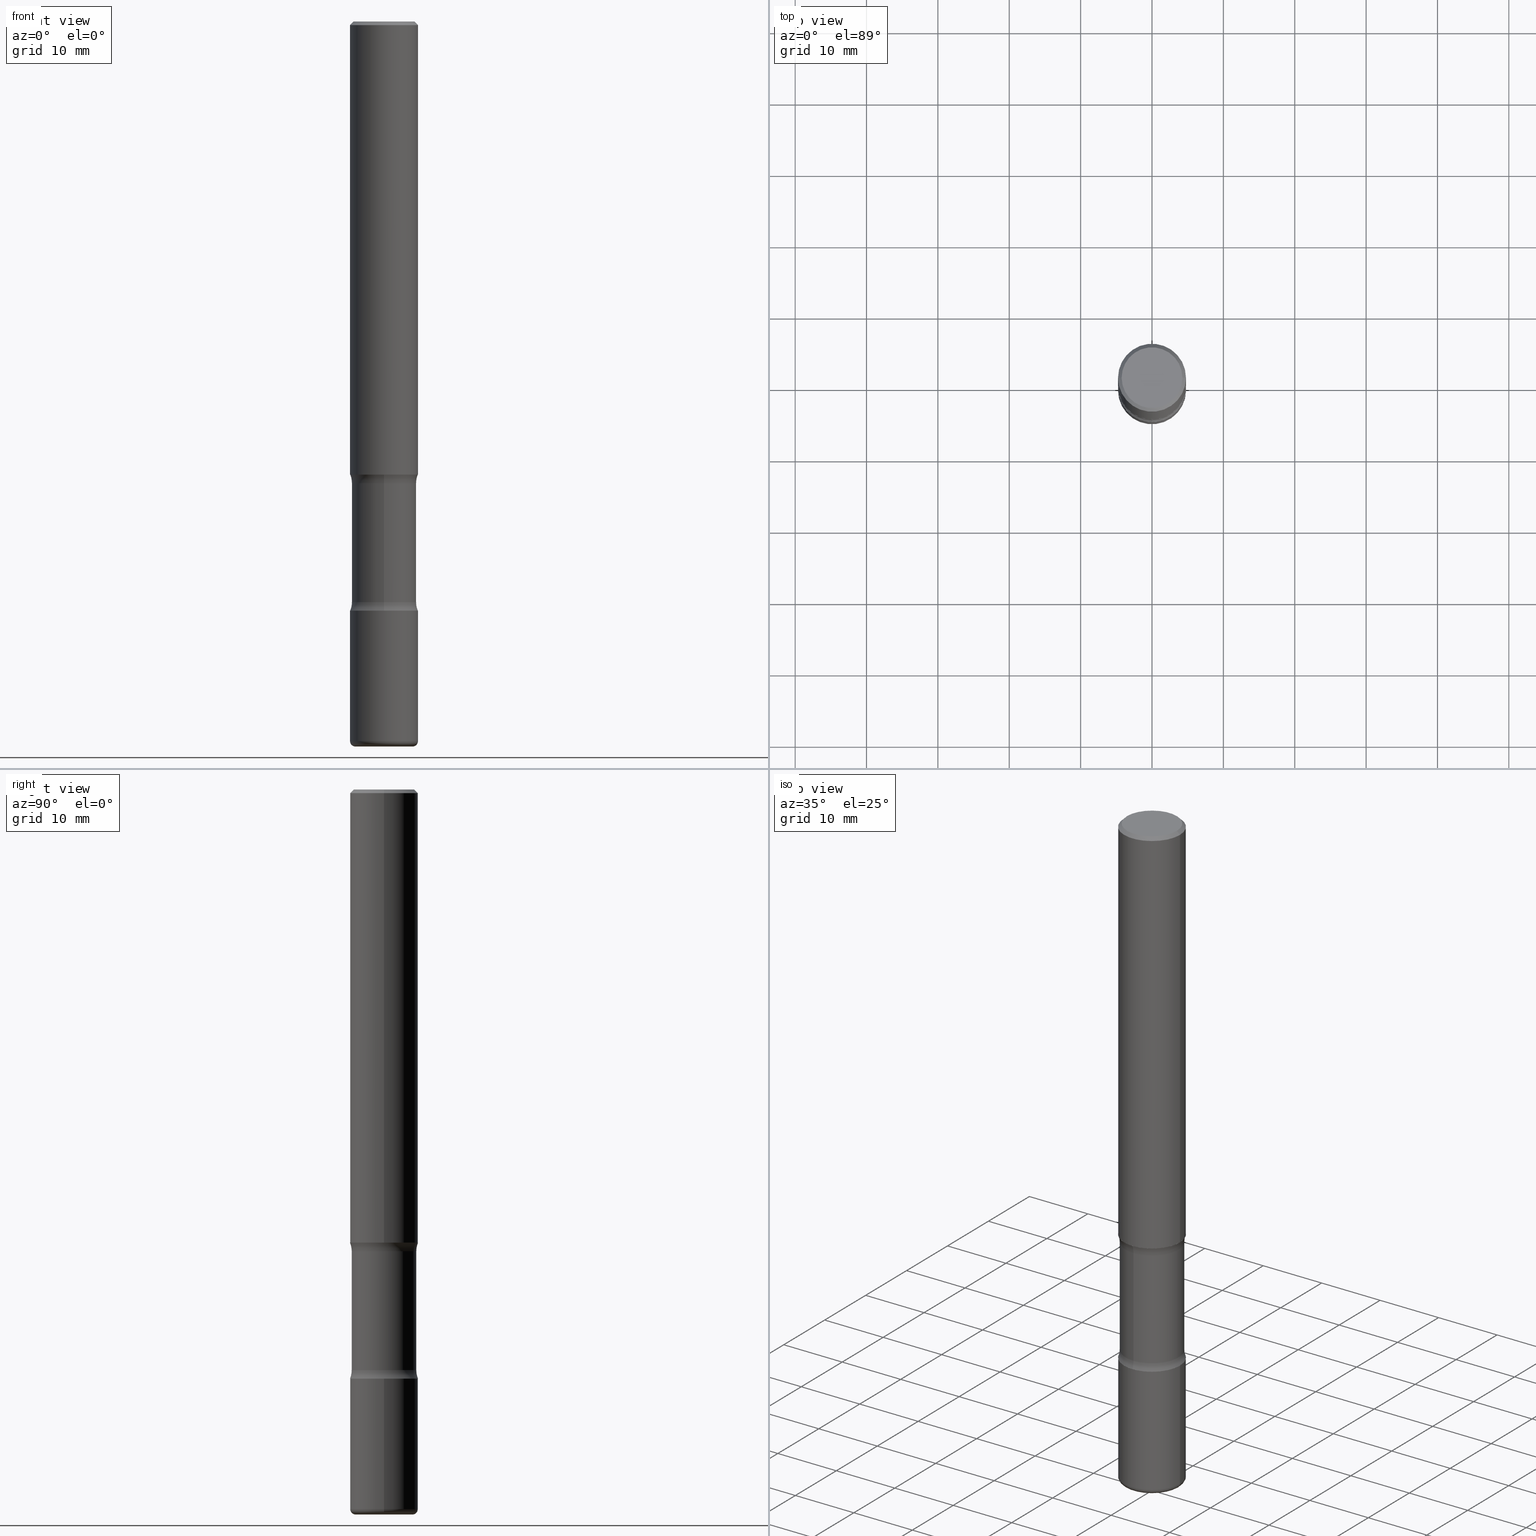
[diagram: canonical four-view strip — front | top / right | iso, engineering-drawing reading convention]
A machine part, canonical four-view strip (front | top / right | iso — engineering-drawing reading convention). The complete STEP part file that produces these views, byte-faithful:
ISO-10303-21;
HEADER;
FILE_DESCRIPTION (( 'STEP AP203' ),
    '1' );
FILE_NAME ('37843.STEP',
    '2024-03-02T00:43:08',
    ( '' ),
    ( '' ),
    'SwSTEP 2.0',
    'SolidWorks 2023',
    '' );
FILE_SCHEMA (( 'CONFIG_CONTROL_DESIGN' ));
ENDSEC;

DATA;
#1 = EDGE_LOOP ( 'NONE', ( #300, #359, #533, #163 ) ) ;
#2 = EDGE_CURVE ( 'NONE', #96, #8, #497, .T. ) ;
#3 = CARTESIAN_POINT ( 'NONE',  ( 0.000000000000000000, 0.000000000000000000, 0.000000000000000000 ) ) ;
#4 = DIRECTION ( 'NONE',  ( 2.558681667686983511E-29, -3.329354077496592524E-15, -1.000000000000000000 ) ) ;
#5 = APPROVAL_ROLE ( '' ) ;
#6 = ORIENTED_EDGE ( 'NONE', *, *, #419, .T. ) ;
#7 = TOROIDAL_SURFACE ( 'NONE', #30, 0.1575000000000001676, 0.02999999999999967970 ) ;
#8 = VERTEX_POINT ( 'NONE', #188 ) ;
#9 = AXIS2_PLACEMENT_3D ( 'NONE', #295, #246, #214 ) ;
#10 = SECURITY_CLASSIFICATION ( '', '', #231 ) ;
#11 = DATE_AND_TIME ( #263, #321 ) ;
#12 = VERTEX_POINT ( 'NONE', #361 ) ;
#13 = APPROVAL_STATUS ( 'not_yet_approved' ) ;
#14 = VERTEX_POINT ( 'NONE', #183 ) ;
#15 = ADVANCED_FACE ( 'NONE', ( #103 ), #314, .T. ) ;
#16 = EDGE_CURVE ( 'NONE', #12, #443, #362, .T. ) ;
#17 = LOCAL_TIME ( 19, 43, 8.000000000000000000, #522 ) ;
#18 = ORIENTED_EDGE ( 'NONE', *, *, #418, .T. ) ;
#19 = VECTOR ( 'NONE', #145, 39.37007874015748143 ) ;
#20 = DIRECTION ( 'NONE',  ( 1.000000000000000000, -6.982962677686269077E-15, 4.883557194083112901E-29 ) ) ;
#21 = ORIENTED_EDGE ( 'NONE', *, *, #490, .F. ) ;
#22 = UNCERTAINTY_MEASURE_WITH_UNIT (LENGTH_MEASURE( 1.000000000000000082E-05 ), #465, 'distance_accuracy_value', 'NONE');
#23 = AXIS2_PLACEMENT_3D ( 'NONE', #97, #52, #230 ) ;
#24 = DIRECTION ( 'NONE',  ( -1.000000000000000000, 6.982962677686265922E-15, -4.876176775795935793E-29 ) ) ;
#25 = CIRCLE ( 'NONE', #71, 0.1575000000000001676 ) ;
#26 = ADVANCED_FACE ( 'NONE', ( #530 ), #445, .T. ) ;
#27 = FACE_OUTER_BOUND ( 'NONE', #130, .T. ) ;
#28 = PLANE ( 'NONE',  #324 ) ;
#29 = CYLINDRICAL_SURFACE ( 'NONE', #536, 0.1875000000000000278 ) ;
#30 = AXIS2_PLACEMENT_3D ( 'NONE', #461, #72, #416 ) ;
#31 = CIRCLE ( 'NONE', #9, 0.1875000000000000833 ) ;
#32 = EDGE_LOOP ( 'NONE', ( #161, #354, #225, #428 ) ) ;
#33 = DIRECTION ( 'NONE',  ( -2.558681667686982950E-29, 3.329354077496592524E-15, 1.000000000000000000 ) ) ;
#34 = CARTESIAN_POINT ( 'NONE',  ( 1.169646248512448806E-15, 0.1674999999999998990, -5.848231242562264739E-16 ) ) ;
#35 = ORIENTED_EDGE ( 'NONE', *, *, #462, .T. ) ;
#36 = CARTESIAN_POINT ( 'NONE',  ( 6.150289227201164007E-29, -9.008429421428009851E-15, -2.547495887979908780 ) ) ;
#37 = EDGE_LOOP ( 'NONE', ( #76, #35, #144, #479 ) ) ;
#38 = DIRECTION ( 'NONE',  ( -2.445468806185136877E-29, 3.491481338843145188E-15, 1.000000000000000000 ) ) ;
#39 = SHAPE_DEFINITION_REPRESENTATION ( #242, #68 ) ;
#40 = ORIENTED_EDGE ( 'NONE', *, *, #112, .F. ) ;
#41 = FACE_OUTER_BOUND ( 'NONE', #250, .T. ) ;
#42 = EDGE_CURVE ( 'NONE', #389, #395, #253, .T. ) ;
#43 = AXIS2_PLACEMENT_3D ( 'NONE', #53, #139, #223 ) ;
#44 = CARTESIAN_POINT ( 'NONE',  ( 0.1875000000000001110, -1.003800884917403995E-14, -2.500000000000000000 ) ) ;
#45 = DATE_AND_TIME ( #127, #106 ) ;
#46 = FACE_OUTER_BOUND ( 'NONE', #483, .T. ) ;
#47 = CARTESIAN_POINT ( 'NONE',  ( 6.028762369336457147E-29, -8.850298793117778356E-15, -2.500000000000000000 ) ) ;
#48 = ORIENTED_EDGE ( 'NONE', *, *, #42, .T. ) ;
#49 = CYLINDRICAL_SURFACE ( 'NONE', #273, 0.1875000000000001110 ) ;
#50 = FACE_OUTER_BOUND ( 'NONE', #226, .T. ) ;
#51 = PERSON_AND_ORGANIZATION ( #366, #303 ) ;
#52 = DIRECTION ( 'NONE',  ( -1.000000000000000000, 6.982962677686265922E-15, -4.883557194083112901E-29 ) ) ;
#53 = CARTESIAN_POINT ( 'NONE',  ( 7.831623907624765469E-29, -1.118148334468659010E-14, -3.202504112020091664 ) ) ;
#54 = AXIS2_PLACEMENT_3D ( 'NONE', #393, #311, #516 ) ;
#55 = ADVANCED_FACE ( 'NONE', ( #46 ), #287, .T. ) ;
#56 = PERSON_AND_ORGANIZATION ( #366, #303 ) ;
#57 = ADVANCED_FACE ( 'NONE', ( #179 ), #49, .T. ) ;
#58 = VERTEX_POINT ( 'NONE', #398 ) ;
#59 = CARTESIAN_POINT ( 'NONE',  ( 4.890937612370289799E-31, -6.982962677686315028E-17, -0.02000000000000006981 ) ) ;
#60 = AXIS2_PLACEMENT_3D ( 'NONE', #455, #254, #66 ) ;
#61 = AXIS2_PLACEMENT_3D ( 'NONE', #498, #454, #290 ) ;
#62 = CARTESIAN_POINT ( 'NONE',  ( 7.831623907624765469E-29, -1.118148334468659010E-14, -3.202504112020091664 ) ) ;
#63 = ORIENTED_EDGE ( 'NONE', *, *, #384, .T. ) ;
#64 = CARTESIAN_POINT ( 'NONE',  ( 0.1874999999999999167, -1.356173001359024677E-15, -0.02000000000000006981 ) ) ;
#65 = EDGE_CURVE ( 'NONE', #134, #252, #218, .T. ) ;
#66 = DIRECTION ( 'NONE',  ( 1.000000000000000000, -6.982962677686265922E-15, 4.876176775795935793E-29 ) ) ;
#67 = CC_DESIGN_APPROVAL ( #329, ( #141 ) ) ;
#68 = ADVANCED_BREP_SHAPE_REPRESENTATION ( '37843', ( #241, #420, #415, #514 ), #542 ) ;
#69 = FACE_OUTER_BOUND ( 'NONE', #476, .T. ) ;
#70 = DIRECTION ( 'NONE',  ( 1.000000000000000000, -6.982962677686277755E-15, 0.000000000000000000 ) ) ;
#71 = AXIS2_PLACEMENT_3D ( 'NONE', #325, #364, #191 ) ;
#72 = DIRECTION ( 'NONE',  ( -2.445468806185136597E-29, 3.491481338843145583E-15, 1.000000000000000000 ) ) ;
#73 = CARTESIAN_POINT ( 'NONE',  ( 7.826246762236988201E-29, -1.118918372292999451E-14, -3.202504112020091664 ) ) ;
#74 = CARTESIAN_POINT ( 'NONE',  ( 1.243840226962927197E-15, 0.1781249999999909572, -2.547495887979909224 ) ) ;
#75 = CARTESIAN_POINT ( 'NONE',  ( 0.000000000000000000, 0.000000000000000000, 0.000000000000000000 ) ) ;
#76 = ORIENTED_EDGE ( 'NONE', *, *, #377, .T. ) ;
#77 = PLANE ( 'NONE',  #60 ) ;
#78 = DIRECTION ( 'NONE',  ( 2.438088387897960049E-29, -3.491481338843145188E-15, -1.000000000000000000 ) ) ;
#79 = VECTOR ( 'NONE', #335, 39.37007874015748143 ) ;
#80 = EDGE_LOOP ( 'NONE', ( #219, #386, #439, #510 ) ) ;
#81 = DIRECTION ( 'NONE',  ( 1.000000000000000000, -6.982962677686269077E-15, 0.000000000000000000 ) ) ;
#82 = EDGE_LOOP ( 'NONE', ( #317, #310 ) ) ;
#83 = CARTESIAN_POINT ( 'NONE',  ( 7.826246762236988201E-29, -1.118918372292999451E-14, -3.202504112020091664 ) ) ;
#84 = APPROVAL_DATE_TIME ( #11, #329 ) ;
#85 = ORIENTED_EDGE ( 'NONE', *, *, #16, .T. ) ;
#86 = APPLICATION_CONTEXT ( 'configuration controlled 3d designs of mechanical parts and assemblies' ) ;
#87 = CALENDAR_DATE ( 2024, 1, 3 ) ;
#88 = ORIENTED_EDGE ( 'NONE', *, *, #408, .T. ) ;
#89 = AXIS2_PLACEMENT_3D ( 'NONE', #59, #235, #376 ) ;
#90 = DIRECTION ( 'NONE',  ( 2.558681667686983511E-29, -3.329354077496592524E-15, -1.000000000000000000 ) ) ;
#91 = EDGE_LOOP ( 'NONE', ( #450, #197 ) ) ;
#92 = DIRECTION ( 'NONE',  ( -2.445468806185136597E-29, 3.491481338843145583E-15, 1.000000000000000000 ) ) ;
#93 = PRODUCT_RELATED_PRODUCT_CATEGORY ( 'detail', '', ( #323 ) ) ;
#94 = FACE_OUTER_BOUND ( 'NONE', #37, .T. ) ;
#95 = DATE_AND_TIME ( #87, #286 ) ;
#96 = VERTEX_POINT ( 'NONE', #401 ) ;
#97 = CARTESIAN_POINT ( 'NONE',  ( 2.116710561673711128E-15, 0.3031249999999910405, -2.547495887979910112 ) ) ;
#98 = ADVANCED_FACE ( 'NONE', ( #187 ), #352, .T. ) ;
#99 = PERSON_AND_ORGANIZATION ( #366, #303 ) ;
#100 = VERTEX_POINT ( 'NONE', #251 ) ;
#101 = APPLICATION_CONTEXT ( 'configuration controlled 3d designs of mechanical parts and assemblies' ) ;
#102 = CIRCLE ( 'NONE', #228, 0.1874999999999999167 ) ;
#103 = FACE_OUTER_BOUND ( 'NONE', #80, .T. ) ;
#104 = ADVANCED_FACE ( 'NONE', ( #27 ), #457, .F. ) ;
#105 = EDGE_CURVE ( 'NONE', #100, #558, #102, .T. ) ;
#106 = LOCAL_TIME ( 19, 43, 8.000000000000000000, #185 ) ;
#107 = CIRCLE ( 'NONE', #184, 0.1250000000000000278 ) ;
#108 = CARTESIAN_POINT ( 'NONE',  ( 9.708511160554993993E-29, -1.386118091520729054E-14, -3.970000000000000639 ) ) ;
#109 = DIRECTION ( 'NONE',  ( -2.445468806185136597E-29, 3.491481338843145583E-15, 1.000000000000000000 ) ) ;
#110 = CYLINDRICAL_SURFACE ( 'NONE', #468, 0.1781249999999999500 ) ;
#111 = CARTESIAN_POINT ( 'NONE',  ( 0.1875000000000001110, -1.309305502066175797E-15, 9.142831454617385217E-30 ) ) ;
#112 = EDGE_CURVE ( 'NONE', #431, #14, #170, .T. ) ;
#113 = ADVANCED_FACE ( 'NONE', ( #69 ), #332, .F. ) ;
#114 = CARTESIAN_POINT ( 'NONE',  ( 7.947773620101696182E-29, -1.134731435124022600E-14, -3.250000000000000444 ) ) ;
#115 = CARTESIAN_POINT ( 'NONE',  ( 9.781875224740546387E-29, -1.396592535537258233E-14, -4.000000000000000000 ) ) ;
#116 = AXIS2_PLACEMENT_3D ( 'NONE', #137, #356, #527 ) ;
#117 = DIRECTION ( 'NONE',  ( 2.558681667686983511E-29, -3.329354077496592524E-15, -1.000000000000000000 ) ) ;
#118 = CIRCLE ( 'NONE', #61, 0.1781249999999999500 ) ;
#119 = CARTESIAN_POINT ( 'NONE',  ( 4.890937612370289799E-31, -6.982962677686315028E-17, -0.02000000000000006981 ) ) ;
#120 = DIRECTION ( 'NONE',  ( -1.000000000000000000, 6.982962677686265922E-15, 0.000000000000000000 ) ) ;
#121 = ORIENTED_EDGE ( 'NONE', *, *, #408, .F. ) ;
#122 = DIMENSIONAL_EXPONENTS ( 1.000000000000000000, 0.000000000000000000, 0.000000000000000000, 0.000000000000000000, 0.000000000000000000, 0.000000000000000000, 0.000000000000000000 ) ;
#123 = AXIS2_PLACEMENT_3D ( 'NONE', #115, #255, #417 ) ;
#124 = CARTESIAN_POINT ( 'NONE',  ( -1.222026205852954821E-15, -0.1781250000000138001, -3.999999999999999556 ) ) ;
#125 = ADVANCED_FACE ( 'NONE', ( #424 ), #156, .F. ) ;
#126 = CARTESIAN_POINT ( 'NONE',  ( 0.000000000000000000, 0.000000000000000000, 0.000000000000000000 ) ) ;
#127 = CALENDAR_DATE ( 2024, 1, 3 ) ;
#128 = DIRECTION ( 'NONE',  ( 6.982962677686266711E-15, 1.000000000000000000, -3.067338098149349089E-15 ) ) ;
#129 = FACE_OUTER_BOUND ( 'NONE', #237, .T. ) ;
#130 = EDGE_LOOP ( 'NONE', ( #48, #549 ) ) ;
#131 = CARTESIAN_POINT ( 'NONE',  ( 1.309305502066236145E-15, 0.1874999999999913125, -2.500000000000000444 ) ) ;
#132 = CLOSED_SHELL ( 'NONE', ( #264, #26, #98, #473, #147, #539 ) ) ;
#133 = DATE_TIME_ROLE ( 'classification_date' ) ;
#134 = VERTEX_POINT ( 'NONE', #74 ) ;
#135 = AXIS2_PLACEMENT_3D ( 'NONE', #272, #4, #274 ) ;
#136 = APPLICATION_PROTOCOL_DEFINITION ( 'international standard', 'config_control_design', 1994, #101 ) ;
#137 = CARTESIAN_POINT ( 'NONE',  ( 4.890937612370289799E-31, -6.982962677686315028E-17, -0.02000000000000006981 ) ) ;
#138 = ORIENTED_EDGE ( 'NONE', *, *, #42, .F. ) ;
#139 = DIRECTION ( 'NONE',  ( 2.558681667686983511E-29, -3.329354077496592524E-15, -1.000000000000000000 ) ) ;
#140 = DIRECTION ( 'NONE',  ( 1.000000000000000000, -6.982962677686266711E-15, 4.876176775795935793E-29 ) ) ;
#141 = PRODUCT_DEFINITION ( 'UNKNOWN', '', #459, #496 ) ;
#142 = CIRCLE ( 'NONE', #210, 0.1875000000000001110 ) ;
#143 = EDGE_CURVE ( 'NONE', #389, #340, #238, .T. ) ;
#144 = ORIENTED_EDGE ( 'NONE', *, *, #105, .F. ) ;
#145 = DIRECTION ( 'NONE',  ( -2.445468806185136877E-29, 3.491481338843145188E-15, 1.000000000000000000 ) ) ;
#146 = CARTESIAN_POINT ( 'NONE',  ( 1.309305502066255275E-15, 0.1874999999999887867, -3.250000000000001332 ) ) ;
#147 = ADVANCED_FACE ( 'NONE', ( #467 ), #77, .F. ) ;
#148 = CIRCLE ( 'NONE', #540, 0.1875000000000001110 ) ;
#149 = AXIS2_PLACEMENT_3D ( 'NONE', #557, #291, #70 ) ;
#150 = EDGE_LOOP ( 'NONE', ( #444, #88, #422, #535 ) ) ;
#151 = ADVANCED_FACE ( 'NONE', ( #244 ), #294, .F. ) ;
#152 = CARTESIAN_POINT ( 'NONE',  ( 2.116710561673727694E-15, 0.3031249999999888201, -3.202504112020092997 ) ) ;
#153 = FACE_OUTER_BOUND ( 'NONE', #32, .T. ) ;
#154 = DIRECTION ( 'NONE',  ( -1.000000000000000000, 6.982962677686265922E-15, -4.883557194083112901E-29 ) ) ;
#155 = DIRECTION ( 'NONE',  ( 1.000000000000000000, -6.982962677686265922E-15, 4.876176775795935793E-29 ) ) ;
#156 = TOROIDAL_SURFACE ( 'NONE', #319, 0.3031249999999999778, 0.1250000000000000278 ) ;
#157 = ADVANCED_FACE ( 'NONE', ( #201 ), #7, .T. ) ;
#158 = DIRECTION ( 'NONE',  ( 1.000000000000000000, -6.860497997771530774E-15, 4.842784365940769113E-29 ) ) ;
#159 = DIRECTION ( 'NONE',  ( 1.000000000000000000, -6.860497997771530774E-15, 4.842784365940769113E-29 ) ) ;
#160 = AXIS2_PLACEMENT_3D ( 'NONE', #62, #370, #198 ) ;
#161 = ORIENTED_EDGE ( 'NONE', *, *, #205, .F. ) ;
#162 = CARTESIAN_POINT ( 'NONE',  ( 6.158285255761511137E-29, -8.996978653423909512E-15, -2.547495887979908780 ) ) ;
#163 = ORIENTED_EDGE ( 'NONE', *, *, #374, .T. ) ;
#164 = CARTESIAN_POINT ( 'NONE',  ( 9.866784870866931853E-29, -1.384432990936266734E-14, -4.000000000000000000 ) ) ;
#165 = DIRECTION ( 'NONE',  ( 6.860497997771532351E-15, 1.000000000000000000, 0.000000000000000000 ) ) ;
#166 = DIRECTION ( 'NONE',  ( -2.445468806185136877E-29, 3.491481338843145188E-15, 1.000000000000000000 ) ) ;
#167 = ADVANCED_FACE ( 'NONE', ( #501 ), #28, .F. ) ;
#168 = ADVANCED_FACE ( 'NONE', ( #50 ), #110, .T. ) ;
#169 = CYLINDRICAL_SURFACE ( 'NONE', #54, 0.1875000000000000278 ) ;
#170 = CIRCLE ( 'NONE', #503, 0.1250000000000000278 ) ;
#171 = DIRECTION ( 'NONE',  ( -2.445468806185136597E-29, 3.491481338843145583E-15, 1.000000000000000000 ) ) ;
#172 = APPROVAL_PERSON_ORGANIZATION ( #346, #329, #5 ) ;
#173 = ORIENTED_EDGE ( 'NONE', *, *, #531, .F. ) ;
#174 = DIRECTION ( 'NONE',  ( 6.982962677686266711E-15, 1.000000000000000000, -3.067338098149349089E-15 ) ) ;
#175 = CALENDAR_DATE ( 2024, 1, 3 ) ;
#176 = ORIENTED_EDGE ( 'NONE', *, *, #220, .T. ) ;
#177 = DIRECTION ( 'NONE',  ( 2.558681667686983511E-29, -3.329354077496592524E-15, -1.000000000000000000 ) ) ;
#178 = EDGE_CURVE ( 'NONE', #443, #12, #148, .T. ) ;
#179 = FACE_OUTER_BOUND ( 'NONE', #426, .T. ) ;
#180 = DIRECTION ( 'NONE',  ( -2.445468806185136597E-29, 3.491481338843145583E-15, 1.000000000000000000 ) ) ;
#181 = PERSON_AND_ORGANIZATION_ROLE ( 'creator' ) ;
#182 = ORIENTED_EDGE ( 'NONE', *, *, #196, .T. ) ;
#183 = CARTESIAN_POINT ( 'NONE',  ( -1.286343374582102609E-15, -0.1875000000000089651, -2.499999999999999556 ) ) ;
#184 = AXIS2_PLACEMENT_3D ( 'NONE', #388, #159, #206 ) ;
#185 = COORDINATED_UNIVERSAL_TIME_OFFSET ( 5, 0, .BEHIND. ) ;
#186 = ORIENTED_EDGE ( 'NONE', *, *, #65, .T. ) ;
#187 = FACE_OUTER_BOUND ( 'NONE', #1, .T. ) ;
#188 = CARTESIAN_POINT ( 'NONE',  ( 0.1674999999999998990, -1.252653207992877500E-15, 8.469775550109235181E-30 ) ) ;
#189 = ORIENTED_EDGE ( 'NONE', *, *, #544, .F. ) ;
#190 = AXIS2_PLACEMENT_3D ( 'NONE', #202, #33, #504 ) ;
#191 = DIRECTION ( 'NONE',  ( 1.000000000000000000, -6.982962677686267499E-15, 0.000000000000000000 ) ) ;
#192 = CIRCLE ( 'NONE', #313, 0.1875000000000001388 ) ;
#193 = ORIENTED_EDGE ( 'NONE', *, *, #462, .F. ) ;
#194 = CC_DESIGN_DATE_AND_TIME_ASSIGNMENT ( #95, #133, ( #10 ) ) ;
#195 = CARTESIAN_POINT ( 'NONE',  ( 1.243840226962964471E-15, 0.1781249999999861278, -4.000000000000000888 ) ) ;
#196 = EDGE_CURVE ( 'NONE', #431, #541, #345, .T. ) ;
#197 = ORIENTED_EDGE ( 'NONE', *, *, #281, .T. ) ;
#198 = DIRECTION ( 'NONE',  ( 6.982962677686266711E-15, 1.000000000000000000, -3.329354077496592130E-15 ) ) ;
#199 = AXIS2_PLACEMENT_3D ( 'NONE', #534, #243, #327 ) ;
#200 = CIRCLE ( 'NONE', #492, 0.1875000000000001388 ) ;
#201 = FACE_OUTER_BOUND ( 'NONE', #150, .T. ) ;
#202 = CARTESIAN_POINT ( 'NONE',  ( 7.947773620101696182E-29, -1.134731435124022600E-14, -3.250000000000000444 ) ) ;
#203 = CARTESIAN_POINT ( 'NONE',  ( 6.113672015462842613E-29, -8.728703347107864943E-15, -2.500000000000000000 ) ) ;
#204 = ADVANCED_FACE ( 'NONE', ( #41 ), #372, .F. ) ;
#205 = EDGE_CURVE ( 'NONE', #395, #389, #499, .T. ) ;
#206 = DIRECTION ( 'NONE',  ( 6.860497997771529985E-15, 1.000000000000000000, 0.000000000000000000 ) ) ;
#207 = VERTEX_POINT ( 'NONE', #532 ) ;
#208 = AXIS2_PLACEMENT_3D ( 'NONE', #435, #318, #484 ) ;
#209 = CARTESIAN_POINT ( 'NONE',  ( 4.890937612370289799E-31, -6.982962677686315028E-17, -0.02000000000000006981 ) ) ;
#210 = AXIS2_PLACEMENT_3D ( 'NONE', #369, #109, #538 ) ;
#211 = AXIS2_PLACEMENT_3D ( 'NONE', #126, #437, #429 ) ;
#212 = ORIENTED_EDGE ( 'NONE', *, *, #281, .F. ) ;
#213 = CC_DESIGN_PERSON_AND_ORGANIZATION_ASSIGNMENT ( #51, #526, ( #10 ) ) ;
#214 = DIRECTION ( 'NONE',  ( 1.000000000000000000, -6.982962677686269866E-15, 0.000000000000000000 ) ) ;
#215 = CARTESIAN_POINT ( 'NONE',  ( 0.1575000000000001676, -1.506574197710817060E-14, -4.000000000000000000 ) ) ;
#216 = ORIENTED_EDGE ( 'NONE', *, *, #377, .F. ) ;
#217 = DIRECTION ( 'NONE',  ( 2.558681667686983511E-29, -3.329354077496592524E-15, -1.000000000000000000 ) ) ;
#218 = CIRCLE ( 'NONE', #23, 0.1250000000000000278 ) ;
#219 = ORIENTED_EDGE ( 'NONE', *, *, #196, .F. ) ;
#220 = EDGE_CURVE ( 'NONE', #443, #336, #556, .T. ) ;
#221 = PERSON_AND_ORGANIZATION ( #366, #303 ) ;
#222 = EDGE_LOOP ( 'NONE', ( #466, #234 ) ) ;
#223 = DIRECTION ( 'NONE',  ( 6.982962677686266711E-15, 1.000000000000000000, -3.329354077496592130E-15 ) ) ;
#224 = PERSON_AND_ORGANIZATION ( #366, #303 ) ;
#225 = ORIENTED_EDGE ( 'NONE', *, *, #339, .T. ) ;
#226 = EDGE_LOOP ( 'NONE', ( #6, #182, #518, #404 ) ) ;
#227 = CARTESIAN_POINT ( 'NONE',  ( 6.028762369336457147E-29, -8.850298793117778356E-15, -2.500000000000000000 ) ) ;
#228 = AXIS2_PLACEMENT_3D ( 'NONE', #209, #378, #387 ) ;
#229 = COORDINATED_UNIVERSAL_TIME_OFFSET ( 5, 0, .BEHIND. ) ;
#230 = DIRECTION ( 'NONE',  ( -6.982962677686267499E-15, -1.000000000000000000, 0.000000000000000000 ) ) ;
#231 = SECURITY_CLASSIFICATION_LEVEL ( 'unclassified' ) ;
#232 = CC_DESIGN_DATE_AND_TIME_ASSIGNMENT ( #45, #477, ( #141 ) ) ;
#233 = ORIENTED_EDGE ( 'NONE', *, *, #502, .T. ) ;
#234 = ORIENTED_EDGE ( 'NONE', *, *, #267, .F. ) ;
#235 = DIRECTION ( 'NONE',  ( -2.445468806185136597E-29, 3.491481338843145583E-15, 1.000000000000000000 ) ) ;
#236 = DIRECTION ( 'NONE',  ( 2.558681667686982950E-29, -3.329354077496592524E-15, -1.000000000000000000 ) ) ;
#237 = EDGE_LOOP ( 'NONE', ( #360, #18, #316, #266 ) ) ;
#238 = CIRCLE ( 'NONE', #547, 0.1250000000000000278 ) ;
#239 = AXIS2_PLACEMENT_3D ( 'NONE', #36, #306, #174 ) ;
#240 = LINE ( 'NONE', #111, #19 ) ;
#241 = MANIFOLD_SOLID_BREP ( 'Body-Move/Copy2[1]', #282 ) ;
#242 = PRODUCT_DEFINITION_SHAPE ( 'NONE', 'NONE',  #141 ) ;
#243 = DIRECTION ( 'NONE',  ( 2.558681667686983511E-29, -3.329354077496592524E-15, -1.000000000000000000 ) ) ;
#244 = FACE_OUTER_BOUND ( 'NONE', #82, .T. ) ;
#245 = VECTOR ( 'NONE', #390, 39.37007874015748143 ) ;
#246 = DIRECTION ( 'NONE',  ( -2.445468806185136597E-29, 3.491481338843145583E-15, 1.000000000000000000 ) ) ;
#247 = CC_DESIGN_PERSON_AND_ORGANIZATION_ASSIGNMENT ( #99, #181, ( #141 ) ) ;
#248 = DIRECTION ( 'NONE',  ( 6.982962677686265922E-15, 1.000000000000000000, -3.329354077496592524E-15 ) ) ;
#249 = DIRECTION ( 'NONE',  ( -2.445468806185136597E-29, 3.491481338843145583E-15, 1.000000000000000000 ) ) ;
#250 = EDGE_LOOP ( 'NONE', ( #189, #138, #508, #233 ) ) ;
#251 = CARTESIAN_POINT ( 'NONE',  ( 0.1874999999999999167, -1.356173001359024677E-15, -0.02000000000000006981 ) ) ;
#252 = VERTEX_POINT ( 'NONE', #131 ) ;
#253 = CIRCLE ( 'NONE', #199, 0.1875000000000000833 ) ;
#254 = DIRECTION ( 'NONE',  ( -2.438088387897960049E-29, 3.491481338843145188E-15, 1.000000000000000000 ) ) ;
#255 = DIRECTION ( 'NONE',  ( -2.445468806185136597E-29, 3.491481338843145583E-15, 1.000000000000000000 ) ) ;
#256 = EDGE_LOOP ( 'NONE', ( #406, #121 ) ) ;
#257 = PLANE ( 'NONE',  #447 ) ;
#258 =( NAMED_UNIT ( * ) SI_UNIT ( $, .STERADIAN. ) SOLID_ANGLE_UNIT ( ) );
#259 = ORIENTED_EDGE ( 'NONE', *, *, #65, .F. ) ;
#260 = CARTESIAN_POINT ( 'NONE',  ( 0.000000000000000000, 0.000000000000000000, 0.000000000000000000 ) ) ;
#261 = ORIENTED_EDGE ( 'NONE', *, *, #515, .F. ) ;
#262 = AXIS2_PLACEMENT_3D ( 'NONE', #3, #269, #140 ) ;
#263 = CALENDAR_DATE ( 2024, 1, 3 ) ;
#264 = ADVANCED_FACE ( 'NONE', ( #94 ), #169, .T. ) ;
#265 = CIRCLE ( 'NONE', #469, 0.1875000000000000833 ) ;
#266 = ORIENTED_EDGE ( 'NONE', *, *, #478, .F. ) ;
#267 = EDGE_CURVE ( 'NONE', #14, #252, #200, .T. ) ;
#268 = DIRECTION ( 'NONE',  ( 6.982962677686266711E-15, 1.000000000000000000, -2.913971193241878794E-15 ) ) ;
#269 = DIRECTION ( 'NONE',  ( -2.445468806185136597E-29, 3.491481338843145583E-15, 1.000000000000000000 ) ) ;
#270 = DIRECTION ( 'NONE',  ( -1.000000000000000000, 6.982962677686265922E-15, -4.876176775795935793E-29 ) ) ;
#271 = ORIENTED_EDGE ( 'NONE', *, *, #178, .T. ) ;
#272 = CARTESIAN_POINT ( 'NONE',  ( 7.947773620101696182E-29, -1.134731435124022600E-14, -3.250000000000000444 ) ) ;
#273 = AXIS2_PLACEMENT_3D ( 'NONE', #351, #320, #409 ) ;
#274 = DIRECTION ( 'NONE',  ( 6.982962677686266711E-15, 1.000000000000000000, -2.913971193241879583E-15 ) ) ;
#275 = CALENDAR_DATE ( 2024, 1, 3 ) ;
#276 = EDGE_LOOP ( 'NONE', ( #216, #173 ) ) ;
#277 = DIRECTION ( 'NONE',  ( 2.558681667686983511E-29, -3.329354077496592524E-15, -1.000000000000000000 ) ) ;
#278 = ORIENTED_EDGE ( 'NONE', *, *, #267, .T. ) ;
#279 = DIRECTION ( 'NONE',  ( -1.000000000000000000, 7.105427357601001859E-15, 0.000000000000000000 ) ) ;
#280 = ORIENTED_EDGE ( 'NONE', *, *, #419, .F. ) ;
#281 = EDGE_CURVE ( 'NONE', #8, #96, #394, .T. ) ;
#282 = CLOSED_SHELL ( 'NONE', ( #57, #367, #330, #157, #55, #151 ) ) ;
#283 = AXIS2_PLACEMENT_3D ( 'NONE', #114, #411, #24 ) ;
#284 = CIRCLE ( 'NONE', #123, 0.1575000000000001676 ) ;
#285 = EDGE_CURVE ( 'NONE', #252, #14, #192, .T. ) ;
#286 = LOCAL_TIME ( 19, 43, 8.000000000000000000, #402 ) ;
#287 = CYLINDRICAL_SURFACE ( 'NONE', #262, 0.1875000000000001110 ) ;
#288 = LINE ( 'NONE', #64, #375 ) ;
#289 = DIRECTION ( 'NONE',  ( 2.445468806185136597E-29, -3.491481338843145583E-15, -1.000000000000000000 ) ) ;
#290 = DIRECTION ( 'NONE',  ( 6.982962677686266711E-15, 1.000000000000000000, -3.067338098149349089E-15 ) ) ;
#291 = DIRECTION ( 'NONE',  ( -6.982962677686266711E-15, -1.000000000000000000, 3.491481338843145583E-15 ) ) ;
#292 = APPROVAL_PERSON_ORGANIZATION ( #56, #436, #353 ) ;
#293 = CIRCLE ( 'NONE', #239, 0.1781249999999999500 ) ;
#294 = PLANE ( 'NONE',  #283 ) ;
#295 = CARTESIAN_POINT ( 'NONE',  ( 7.947773620101696182E-29, -1.134731435124022600E-14, -3.250000000000000444 ) ) ;
#296 = CC_DESIGN_PERSON_AND_ORGANIZATION_ASSIGNMENT ( #442, #438, ( #459 ) ) ;
#297 = ORIENTED_EDGE ( 'NONE', *, *, #112, .T. ) ;
#298 = DIRECTION ( 'NONE',  ( -6.982962677686267499E-15, -1.000000000000000000, 0.000000000000000000 ) ) ;
#299 = DIRECTION ( 'NONE',  ( 6.982962677686265133E-15, 1.000000000000000000, -3.067338098149349483E-15 ) ) ;
#300 = ORIENTED_EDGE ( 'NONE', *, *, #449, .F. ) ;
#301 = EDGE_CURVE ( 'NONE', #431, #134, #293, .T. ) ;
#302 = VECTOR ( 'NONE', #308, 39.37007874015748143 ) ;
#303 = ORGANIZATION ( 'UNSPECIFIED', 'UNSPECIFIED', '' ) ;
#304 =( NAMED_UNIT ( * ) PLANE_ANGLE_UNIT ( ) SI_UNIT ( $, .RADIAN. ) );
#305 = ORIENTED_EDGE ( 'NONE', *, *, #285, .T. ) ;
#306 = DIRECTION ( 'NONE',  ( 2.558681667686983511E-29, -3.329354077496592524E-15, -1.000000000000000000 ) ) ;
#307 = PERSON_AND_ORGANIZATION ( #366, #303 ) ;
#308 = DIRECTION ( 'NONE',  ( 2.558681667686983511E-29, -3.329354077496592524E-15, -1.000000000000000000 ) ) ;
#309 = CARTESIAN_POINT ( 'NONE',  ( 9.708511160554993993E-29, -1.386118091520729054E-14, -3.970000000000000639 ) ) ;
#310 = ORIENTED_EDGE ( 'NONE', *, *, #490, .T. ) ;
#311 = DIRECTION ( 'NONE',  ( -2.445468806185136597E-29, 3.491481338843145583E-15, 1.000000000000000000 ) ) ;
#312 = CC_DESIGN_SECURITY_CLASSIFICATION ( #10, ( #459 ) ) ;
#313 = AXIS2_PLACEMENT_3D ( 'NONE', #47, #217, #560 ) ;
#314 = CYLINDRICAL_SURFACE ( 'NONE', #523, 0.1781249999999999500 ) ;
#315 = COORDINATED_UNIVERSAL_TIME_OFFSET ( 5, 0, .BEHIND. ) ;
#316 = ORIENTED_EDGE ( 'NONE', *, *, #16, .F. ) ;
#317 = ORIENTED_EDGE ( 'NONE', *, *, #521, .T. ) ;
#318 = DIRECTION ( 'NONE',  ( -2.445468806185136597E-29, 3.491481338843145583E-15, 1.000000000000000000 ) ) ;
#319 = AXIS2_PLACEMENT_3D ( 'NONE', #162, #117, #337 ) ;
#320 = DIRECTION ( 'NONE',  ( -2.445468806185136597E-29, 3.491481338843145583E-15, 1.000000000000000000 ) ) ;
#321 = LOCAL_TIME ( 19, 43, 8.000000000000000000, #229 ) ;
#322 = CARTESIAN_POINT ( 'NONE',  ( -1.286343374582083282E-15, -0.1875000000000114075, -3.250000000000000000 ) ) ;
#323 = PRODUCT ( '37843', '37843', '', ( #475 ) ) ;
#324 = AXIS2_PLACEMENT_3D ( 'NONE', #349, #236, #248 ) ;
#325 = CARTESIAN_POINT ( 'NONE',  ( 9.781875224740546387E-29, -1.396592535537258233E-14, -4.000000000000000000 ) ) ;
#326 = AXIS2_PLACEMENT_3D ( 'NONE', #83, #474, #399 ) ;
#327 = DIRECTION ( 'NONE',  ( 6.982962677686266711E-15, 1.000000000000000000, -2.913971193241879583E-15 ) ) ;
#328 = LINE ( 'NONE', #427, #245 ) ;
#329 = APPROVAL ( #357, 'UNSPECIFIED' ) ;
#330 = ADVANCED_FACE ( 'NONE', ( #471 ), #257, .T. ) ;
#331 = CARTESIAN_POINT ( 'NONE',  ( -1.254184790217529307E-15, -0.1781250000000111355, -3.202504112020091220 ) ) ;
#332 = TOROIDAL_SURFACE ( 'NONE', #405, 0.3031249999999999778, 0.1250000000000000278 ) ;
#333 = AXIS2_PLACEMENT_3D ( 'NONE', #73, #385, #299 ) ;
#334 = DIRECTION ( 'NONE',  ( 2.558681667686983511E-29, -3.329354077496592524E-15, -1.000000000000000000 ) ) ;
#335 = DIRECTION ( 'NONE',  ( -0.7071067811865467956, 2.468850131082249172E-15, -0.7071067811865482389 ) ) ;
#336 = VERTEX_POINT ( 'NONE', #441 ) ;
#337 = DIRECTION ( 'NONE',  ( 6.982962677686266711E-15, 1.000000000000000000, -3.329354077496592130E-15 ) ) ;
#338 = CARTESIAN_POINT ( 'NONE',  ( 7.947773620101696182E-29, -1.134731435124022600E-14, -3.250000000000000444 ) ) ;
#339 = EDGE_CURVE ( 'NONE', #541, #340, #452, .T. ) ;
#340 = VERTEX_POINT ( 'NONE', #519 ) ;
#341 = DIRECTION ( 'NONE',  ( -2.445468806185136597E-29, 3.491481338843145583E-15, 1.000000000000000000 ) ) ;
#342 = LINE ( 'NONE', #195, #550 ) ;
#343 = LINE ( 'NONE', #458, #79 ) ;
#344 = ORIENTED_EDGE ( 'NONE', *, *, #220, .F. ) ;
#345 = LINE ( 'NONE', #124, #302 ) ;
#346 = PERSON_AND_ORGANIZATION ( #366, #303 ) ;
#347 = VERTEX_POINT ( 'NONE', #44 ) ;
#348 = DIRECTION ( 'NONE',  ( 2.438088387897960049E-29, -3.491481338843145188E-15, -1.000000000000000000 ) ) ;
#349 = CARTESIAN_POINT ( 'NONE',  ( 6.113672015462842613E-29, -8.728703347107864943E-15, -2.500000000000000000 ) ) ;
#350 = PERSON_AND_ORGANIZATION_ROLE ( 'creator' ) ;
#351 = CARTESIAN_POINT ( 'NONE',  ( 0.000000000000000000, 0.000000000000000000, 0.000000000000000000 ) ) ;
#352 = CONICAL_SURFACE ( 'NONE', #412, 0.1874999999999999167, 0.7853981633974472798 ) ;
#353 = APPROVAL_ROLE ( '' ) ;
#354 = ORIENTED_EDGE ( 'NONE', *, *, #544, .T. ) ;
#355 = AXIS2_PLACEMENT_3D ( 'NONE', #203, #249, #463 ) ;
#356 = DIRECTION ( 'NONE',  ( 2.445468806185136597E-29, -3.491481338843145583E-15, -1.000000000000000000 ) ) ;
#357 = APPROVAL_STATUS ( 'not_yet_approved' ) ;
#358 = ORIENTED_EDGE ( 'NONE', *, *, #384, .F. ) ;
#359 = ORIENTED_EDGE ( 'NONE', *, *, #2, .F. ) ;
#360 = ORIENTED_EDGE ( 'NONE', *, *, #464, .T. ) ;
#361 = CARTESIAN_POINT ( 'NONE',  ( 0.1874999999999999722, -1.517048641727346712E-14, -3.970000000000000639 ) ) ;
#362 = CIRCLE ( 'NONE', #489, 0.1875000000000001110 ) ;
#363 = ORIENTED_EDGE ( 'NONE', *, *, #374, .F. ) ;
#364 = DIRECTION ( 'NONE',  ( -2.445468806185136597E-29, 3.491481338843145583E-15, 1.000000000000000000 ) ) ;
#365 = TOROIDAL_SURFACE ( 'NONE', #383, 0.1575000000000001676, 0.02999999999999967970 ) ;
#366 = PERSON ( 'UNSPECIFIED', 'UNSPECIFIED', 'UNSPECIFIED', ('UNSPECIFIED'), ('UNSPECIFIED'), ('UNSPECIFIED') ) ;
#367 = ADVANCED_FACE ( 'NONE', ( #129 ), #365, .T. ) ;
#368 = EDGE_CURVE ( 'NONE', #134, #340, #342, .T. ) ;
#369 = CARTESIAN_POINT ( 'NONE',  ( 6.113672015462842613E-29, -8.728703347107864943E-15, -2.500000000000000000 ) ) ;
#370 = DIRECTION ( 'NONE',  ( 2.558681667686983511E-29, -3.329354077496592524E-15, -1.000000000000000000 ) ) ;
#371 = EDGE_LOOP ( 'NONE', ( #487, #297, #278, #259 ) ) ;
#372 = TOROIDAL_SURFACE ( 'NONE', #43, 0.3031249999999999778, 0.1250000000000000278 ) ;
#373 = CARTESIAN_POINT ( 'NONE',  ( 0.1875000000000000833, -1.265661985330640259E-14, -3.250000000000000444 ) ) ;
#374 = EDGE_CURVE ( 'NONE', #558, #100, #525, .T. ) ;
#375 = VECTOR ( 'NONE', #410, 39.37007874015748143 ) ;
#376 = DIRECTION ( 'NONE',  ( 1.000000000000000000, -6.982962677686265922E-15, 0.000000000000000000 ) ) ;
#377 = EDGE_CURVE ( 'NONE', #347, #58, #142, .T. ) ;
#378 = DIRECTION ( 'NONE',  ( -2.445468806185136597E-29, 3.491481338843145583E-15, 1.000000000000000000 ) ) ;
#379 = FACE_OUTER_BOUND ( 'NONE', #513, .T. ) ;
#380 = ADVANCED_FACE ( 'NONE', ( #153 ), #407, .F. ) ;
#381 = LINE ( 'NONE', #507, #413 ) ;
#382 = ORIENTED_EDGE ( 'NONE', *, *, #531, .T. ) ;
#383 = AXIS2_PLACEMENT_3D ( 'NONE', #309, #180, #20 ) ;
#384 = EDGE_CURVE ( 'NONE', #12, #453, #240, .T. ) ;
#385 = DIRECTION ( 'NONE',  ( 2.558681667686983511E-29, -3.329354077496592524E-15, -1.000000000000000000 ) ) ;
#386 = ORIENTED_EDGE ( 'NONE', *, *, #301, .T. ) ;
#387 = DIRECTION ( 'NONE',  ( 1.000000000000000000, -6.982962677686265922E-15, 0.000000000000000000 ) ) ;
#388 = CARTESIAN_POINT ( 'NONE',  ( -2.079588455574416777E-15, -0.3031250000000111355, -3.202504112020090776 ) ) ;
#389 = VERTEX_POINT ( 'NONE', #146 ) ;
#390 = DIRECTION ( 'NONE',  ( -2.445468806185136877E-29, 3.491481338843145188E-15, 1.000000000000000000 ) ) ;
#391 = APPROVAL ( #13, 'UNSPECIFIED' ) ;
#392 = ORIENTED_EDGE ( 'NONE', *, *, #449, .T. ) ;
#393 = CARTESIAN_POINT ( 'NONE',  ( 0.000000000000000000, 0.000000000000000000, 0.000000000000000000 ) ) ;
#394 = CIRCLE ( 'NONE', #211, 0.1674999999999998990 ) ;
#395 = VERTEX_POINT ( 'NONE', #322 ) ;
#396 = CC_DESIGN_PERSON_AND_ORGANIZATION_ASSIGNMENT ( #221, #350, ( #459 ) ) ;
#397 = DIRECTION ( 'NONE',  ( 1.000000000000000000, 0.000000000000000000, 0.000000000000000000 ) ) ;
#398 = CARTESIAN_POINT ( 'NONE',  ( -0.1875000000000000833, -3.066998857392172722E-15, -2.500000000000000000 ) ) ;
#399 = DIRECTION ( 'NONE',  ( 6.982962677686265133E-15, 1.000000000000000000, -3.067338098149349483E-15 ) ) ;
#400 = DATE_AND_TIME ( #175, #17 ) ;
#401 = CARTESIAN_POINT ( 'NONE',  ( -0.1674999999999998990, 1.204561061900880061E-15, -8.301862719484106184E-30 ) ) ;
#402 = COORDINATED_UNIVERSAL_TIME_OFFSET ( 5, 0, .BEHIND. ) ;
#403 = ORIENTED_EDGE ( 'NONE', *, *, #105, .T. ) ;
#404 = ORIENTED_EDGE ( 'NONE', *, *, #368, .F. ) ;
#405 = AXIS2_PLACEMENT_3D ( 'NONE', #551, #334, #506 ) ;
#406 = ORIENTED_EDGE ( 'NONE', *, *, #464, .F. ) ;
#407 = TOROIDAL_SURFACE ( 'NONE', #160, 0.3031249999999999778, 0.1250000000000000278 ) ;
#408 = EDGE_CURVE ( 'NONE', #207, #529, #25, .T. ) ;
#409 = DIRECTION ( 'NONE',  ( 1.000000000000000000, -6.982962677686266711E-15, 4.876176775795935793E-29 ) ) ;
#410 = DIRECTION ( 'NONE',  ( 0.7071067811865467956, -7.319954787623254468E-15, -0.7071067811865482389 ) ) ;
#411 = DIRECTION ( 'NONE',  ( 2.438088387897960049E-29, -3.491481338843145188E-15, -1.000000000000000000 ) ) ;
#412 = AXIS2_PLACEMENT_3D ( 'NONE', #119, #289, #120 ) ;
#413 = VECTOR ( 'NONE', #166, 39.37007874015748143 ) ;
#414 =( LENGTH_UNIT ( ) NAMED_UNIT ( * ) SI_UNIT ( $, .METRE. ) );
#415 = MANIFOLD_SOLID_BREP ( 'Body-Move/Copy2[4]', #512 ) ;
#416 = DIRECTION ( 'NONE',  ( 1.000000000000000000, -6.982962677686269077E-15, 4.883557194083112901E-29 ) ) ;
#417 = DIRECTION ( 'NONE',  ( 1.000000000000000000, -6.982962677686267499E-15, 0.000000000000000000 ) ) ;
#418 = EDGE_CURVE ( 'NONE', #207, #443, #524, .T. ) ;
#419 = EDGE_CURVE ( 'NONE', #134, #431, #118, .T. ) ;
#420 = MANIFOLD_SOLID_BREP ( 'Body-Move/Copy2[2]', #132 ) ;
#421 = CARTESIAN_POINT ( 'NONE',  ( -2.079588455574433343E-15, -0.3031250000000089706, -2.547495887979907891 ) ) ;
#422 = ORIENTED_EDGE ( 'NONE', *, *, #478, .T. ) ;
#423 = VECTOR ( 'NONE', #38, 39.37007874015748143 ) ;
#424 = FACE_OUTER_BOUND ( 'NONE', #371, .T. ) ;
#425 = FACE_OUTER_BOUND ( 'NONE', #91, .T. ) ;
#426 = EDGE_LOOP ( 'NONE', ( #85, #176, #553, #358 ) ) ;
#427 = CARTESIAN_POINT ( 'NONE',  ( -0.1875000000000000278, 1.332267629550188046E-15, -9.223003294227947991E-30 ) ) ;
#428 = ORIENTED_EDGE ( 'NONE', *, *, #143, .F. ) ;
#429 = DIRECTION ( 'NONE',  ( 1.000000000000000000, -6.982962677686265922E-15, 4.876176775795935793E-29 ) ) ;
#430 = APPROVAL_DATE_TIME ( #400, #391 ) ;
#431 = VERTEX_POINT ( 'NONE', #500 ) ;
#432 = CARTESIAN_POINT ( 'NONE',  ( 9.781875224740546387E-29, -1.396592535537258233E-14, -4.000000000000000000 ) ) ;
#433 = AXIS2_PLACEMENT_3D ( 'NONE', #543, #495, #279 ) ;
#434 = DIRECTION ( 'NONE',  ( 0.000000000000000000, 0.000000000000000000, 1.000000000000000000 ) ) ;
#435 = CARTESIAN_POINT ( 'NONE',  ( 0.000000000000000000, 0.000000000000000000, 0.000000000000000000 ) ) ;
#436 = APPROVAL ( #528, 'UNSPECIFIED' ) ;
#437 = DIRECTION ( 'NONE',  ( -2.445468806185136597E-29, 3.491481338843145583E-15, 1.000000000000000000 ) ) ;
#438 = PERSON_AND_ORGANIZATION_ROLE ( 'design_supplier' ) ;
#439 = ORIENTED_EDGE ( 'NONE', *, *, #368, .T. ) ;
#440 = DIRECTION ( 'NONE',  ( 6.982962677686266711E-15, 1.000000000000000000, -3.067338098149349089E-15 ) ) ;
#441 = CARTESIAN_POINT ( 'NONE',  ( -0.1875000000000000833, -1.127198000367356963E-14, -3.250000000000000444 ) ) ;
#442 = PERSON_AND_ORGANIZATION ( #366, #303 ) ;
#443 = VERTEX_POINT ( 'NONE', #456 ) ;
#444 = ORIENTED_EDGE ( 'NONE', *, *, #418, .F. ) ;
#445 = CONICAL_SURFACE ( 'NONE', #116, 0.1874999999999999167, 0.7853981633974472798 ) ;
#446 = APPROVAL_DATE_TIME ( #485, #436 ) ;
#447 = AXIS2_PLACEMENT_3D ( 'NONE', #432, #348, #270 ) ;
#448 = DIRECTION ( 'NONE',  ( 1.000000000000000000, -6.982962677686269077E-15, 0.000000000000000000 ) ) ;
#449 = EDGE_CURVE ( 'NONE', #8, #100, #288, .T. ) ;
#450 = ORIENTED_EDGE ( 'NONE', *, *, #2, .T. ) ;
#451 = DIRECTION ( 'NONE',  ( 2.558681667686983511E-29, -3.329354077496592524E-15, -1.000000000000000000 ) ) ;
#452 = CIRCLE ( 'NONE', #326, 0.1781249999999999223 ) ;
#453 = VERTEX_POINT ( 'NONE', #373 ) ;
#454 = DIRECTION ( 'NONE',  ( 2.558681667686983511E-29, -3.329354077496592524E-15, -1.000000000000000000 ) ) ;
#455 = CARTESIAN_POINT ( 'NONE',  ( 6.113672015462842613E-29, -8.728703347107864943E-15, -2.500000000000000000 ) ) ;
#456 = CARTESIAN_POINT ( 'NONE',  ( -0.1874999999999999722, -1.252891328565710269E-14, -3.970000000000000639 ) ) ;
#457 = PLANE ( 'NONE',  #190 ) ;
#458 = CARTESIAN_POINT ( 'NONE',  ( -0.1874999999999999167, 1.239475875289311118E-15, -0.02000000000000006981 ) ) ;
#459 = PRODUCT_DEFINITION_FORMATION_WITH_SPECIFIED_SOURCE ( 'ANY', '', #323, .NOT_KNOWN. ) ;
#460 = CIRCLE ( 'NONE', #149, 0.02999999999999967970 ) ;
#461 = CARTESIAN_POINT ( 'NONE',  ( 9.708511160554993993E-29, -1.386118091520729054E-14, -3.970000000000000639 ) ) ;
#462 = EDGE_CURVE ( 'NONE', #58, #558, #328, .T. ) ;
#463 = DIRECTION ( 'NONE',  ( 1.000000000000000000, -6.982962677686263555E-15, 0.000000000000000000 ) ) ;
#464 = EDGE_CURVE ( 'NONE', #529, #207, #284, .T. ) ;
#465 =( CONVERSION_BASED_UNIT ( 'INCH', #472 ) LENGTH_UNIT ( ) NAMED_UNIT ( #122 ) );
#466 = ORIENTED_EDGE ( 'NONE', *, *, #285, .F. ) ;
#467 = FACE_OUTER_BOUND ( 'NONE', #276, .T. ) ;
#468 = AXIS2_PLACEMENT_3D ( 'NONE', #164, #177, #128 ) ;
#469 = AXIS2_PLACEMENT_3D ( 'NONE', #338, #511, #554 ) ;
#470 = LOCAL_TIME ( 19, 43, 8.000000000000000000, #315 ) ;
#471 = FACE_OUTER_BOUND ( 'NONE', #256, .T. ) ;
#472 = LENGTH_MEASURE_WITH_UNIT ( LENGTH_MEASURE( 0.02539999999999999897 ), #414 );
#473 = ADVANCED_FACE ( 'NONE', ( #425 ), #546, .F. ) ;
#474 = DIRECTION ( 'NONE',  ( 2.558681667686983511E-29, -3.329354077496592524E-15, -1.000000000000000000 ) ) ;
#475 = MECHANICAL_CONTEXT ( 'NONE', #86, 'mechanical' ) ;
#476 = EDGE_LOOP ( 'NONE', ( #40, #280, #186, #305 ) ) ;
#477 = DATE_TIME_ROLE ( 'creation_date' ) ;
#478 = EDGE_CURVE ( 'NONE', #529, #12, #460, .T. ) ;
#479 = ORIENTED_EDGE ( 'NONE', *, *, #545, .F. ) ;
#480 = CARTESIAN_POINT ( 'NONE',  ( -0.1875000000000001110, 1.332267629550188637E-15, -9.223003294227953596E-30 ) ) ;
#481 = CC_DESIGN_APPROVAL ( #436, ( #459 ) ) ;
#482 = CIRCLE ( 'NONE', #355, 0.1875000000000001110 ) ;
#483 = EDGE_LOOP ( 'NONE', ( #344, #271, #63, #21 ) ) ;
#484 = DIRECTION ( 'NONE',  ( 1.000000000000000000, -6.982962677686265922E-15, 4.876176775795935793E-29 ) ) ;
#485 = DATE_AND_TIME ( #275, #470 ) ;
#486 = CARTESIAN_POINT ( 'NONE',  ( 9.866784870866931853E-29, -1.384432990936266734E-14, -4.000000000000000000 ) ) ;
#487 = ORIENTED_EDGE ( 'NONE', *, *, #301, .F. ) ;
#488 = ORIENTED_EDGE ( 'NONE', *, *, #545, .T. ) ;
#489 = AXIS2_PLACEMENT_3D ( 'NONE', #108, #92, #448 ) ;
#490 = EDGE_CURVE ( 'NONE', #336, #453, #265, .T. ) ;
#491 = APPROVAL_PERSON_ORGANIZATION ( #307, #391, #517 ) ;
#492 = AXIS2_PLACEMENT_3D ( 'NONE', #227, #90, #268 ) ;
#493 = CC_DESIGN_APPROVAL ( #391, ( #10 ) ) ;
#494 = EDGE_LOOP ( 'NONE', ( #212, #392, #403, #261 ) ) ;
#495 = DIRECTION ( 'NONE',  ( 7.105427357601001859E-15, 1.000000000000000000, -3.491481338843145583E-15 ) ) ;
#496 = DESIGN_CONTEXT ( 'detailed design', #101, 'design' ) ;
#497 = CIRCLE ( 'NONE', #208, 0.1674999999999998990 ) ;
#498 = CARTESIAN_POINT ( 'NONE',  ( 6.150289227201164007E-29, -9.008429421428009851E-15, -2.547495887979908780 ) ) ;
#499 = CIRCLE ( 'NONE', #135, 0.1875000000000000833 ) ;
#500 = CARTESIAN_POINT ( 'NONE',  ( -1.254184790217547253E-15, -0.1781250000000089706, -2.547495887979908336 ) ) ;
#501 = FACE_OUTER_BOUND ( 'NONE', #222, .T. ) ;
#502 = EDGE_CURVE ( 'NONE', #340, #541, #559, .T. ) ;
#503 = AXIS2_PLACEMENT_3D ( 'NONE', #421, #158, #165 ) ;
#504 = DIRECTION ( 'NONE',  ( -6.982962677686265922E-15, -1.000000000000000000, 3.329354077496592524E-15 ) ) ;
#505 = AXIS2_PLACEMENT_3D ( 'NONE', #34, #78, #548 ) ;
#506 = DIRECTION ( 'NONE',  ( 6.982962677686266711E-15, 1.000000000000000000, -3.329354077496592130E-15 ) ) ;
#507 = CARTESIAN_POINT ( 'NONE',  ( 0.1875000000000000278, -1.309305502066175008E-15, 9.142831454617381013E-30 ) ) ;
#508 = ORIENTED_EDGE ( 'NONE', *, *, #143, .T. ) ;
#509 = APPLICATION_PROTOCOL_DEFINITION ( 'international standard', 'config_control_design', 1994, #86 ) ;
#510 = ORIENTED_EDGE ( 'NONE', *, *, #339, .F. ) ;
#511 = DIRECTION ( 'NONE',  ( -2.445468806185136597E-29, 3.491481338843145583E-15, 1.000000000000000000 ) ) ;
#512 = CLOSED_SHELL ( 'NONE', ( #168, #380, #125, #113, #167, #104, #204, #15 ) ) ;
#513 = EDGE_LOOP ( 'NONE', ( #193, #382, #488, #363 ) ) ;
#514 = AXIS2_PLACEMENT_3D ( 'NONE', #260, #434, #397 ) ;
#515 = EDGE_CURVE ( 'NONE', #96, #558, #343, .T. ) ;
#516 = DIRECTION ( 'NONE',  ( 1.000000000000000000, -6.982962677686265922E-15, 4.876176775795935793E-29 ) ) ;
#517 = APPROVAL_ROLE ( '' ) ;
#518 = ORIENTED_EDGE ( 'NONE', *, *, #502, .F. ) ;
#519 = CARTESIAN_POINT ( 'NONE',  ( 1.243840226962943961E-15, 0.1781249999999887368, -3.202504112020092553 ) ) ;
#520 = PERSON_AND_ORGANIZATION_ROLE ( 'design_owner' ) ;
#521 = EDGE_CURVE ( 'NONE', #453, #336, #31, .T. ) ;
#522 = COORDINATED_UNIVERSAL_TIME_OFFSET ( 5, 0, .BEHIND. ) ;
#523 = AXIS2_PLACEMENT_3D ( 'NONE', #486, #277, #440 ) ;
#524 = CIRCLE ( 'NONE', #433, 0.02999999999999967970 ) ;
#525 = CIRCLE ( 'NONE', #89, 0.1874999999999999167 ) ;
#526 = PERSON_AND_ORGANIZATION_ROLE ( 'classification_officer' ) ;
#527 = DIRECTION ( 'NONE',  ( -1.000000000000000000, 6.982962677686265922E-15, 0.000000000000000000 ) ) ;
#528 = APPROVAL_STATUS ( 'not_yet_approved' ) ;
#529 = VERTEX_POINT ( 'NONE', #215 ) ;
#530 = FACE_OUTER_BOUND ( 'NONE', #494, .T. ) ;
#531 = EDGE_CURVE ( 'NONE', #58, #347, #482, .T. ) ;
#532 = CARTESIAN_POINT ( 'NONE',  ( -0.1575000000000001676, -1.268786691610376371E-14, -4.000000000000000000 ) ) ;
#533 = ORIENTED_EDGE ( 'NONE', *, *, #515, .T. ) ;
#534 = CARTESIAN_POINT ( 'NONE',  ( 7.947773620101696182E-29, -1.134731435124022600E-14, -3.250000000000000444 ) ) ;
#535 = ORIENTED_EDGE ( 'NONE', *, *, #178, .F. ) ;
#536 = AXIS2_PLACEMENT_3D ( 'NONE', #75, #171, #155 ) ;
#537 = CC_DESIGN_PERSON_AND_ORGANIZATION_ASSIGNMENT ( #224, #520, ( #323 ) ) ;
#538 = DIRECTION ( 'NONE',  ( 1.000000000000000000, -6.982962677686263555E-15, 0.000000000000000000 ) ) ;
#539 = ADVANCED_FACE ( 'NONE', ( #379 ), #29, .T. ) ;
#540 = AXIS2_PLACEMENT_3D ( 'NONE', #555, #341, #81 ) ;
#541 = VERTEX_POINT ( 'NONE', #331 ) ;
#542 =( GEOMETRIC_REPRESENTATION_CONTEXT ( 3 ) GLOBAL_UNCERTAINTY_ASSIGNED_CONTEXT ( ( #22 ) ) GLOBAL_UNIT_ASSIGNED_CONTEXT ( ( #465, #304, #258 ) ) REPRESENTATION_CONTEXT ( 'NONE', 'WORKASPACE' ) );
#543 = CARTESIAN_POINT ( 'NONE',  ( -0.1575000000000001676, -1.274207610638513136E-14, -3.970000000000000639 ) ) ;
#544 = EDGE_CURVE ( 'NONE', #395, #541, #107, .T. ) ;
#545 = EDGE_CURVE ( 'NONE', #347, #100, #381, .T. ) ;
#546 = PLANE ( 'NONE',  #505 ) ;
#547 = AXIS2_PLACEMENT_3D ( 'NONE', #152, #154, #298 ) ;
#548 = DIRECTION ( 'NONE',  ( -1.000000000000000000, 6.982962677686265922E-15, -4.876176775795935793E-29 ) ) ;
#549 = ORIENTED_EDGE ( 'NONE', *, *, #205, .T. ) ;
#550 = VECTOR ( 'NONE', #451, 39.37007874015748143 ) ;
#551 = CARTESIAN_POINT ( 'NONE',  ( 6.158285255761511137E-29, -8.996978653423909512E-15, -2.547495887979908780 ) ) ;
#552 = CARTESIAN_POINT ( 'NONE',  ( -0.1874999999999999167, 1.239475875289311118E-15, -0.02000000000000006981 ) ) ;
#553 = ORIENTED_EDGE ( 'NONE', *, *, #521, .F. ) ;
#554 = DIRECTION ( 'NONE',  ( 1.000000000000000000, -6.982962677686269866E-15, 0.000000000000000000 ) ) ;
#555 = CARTESIAN_POINT ( 'NONE',  ( 9.708511160554993993E-29, -1.386118091520729054E-14, -3.970000000000000639 ) ) ;
#556 = LINE ( 'NONE', #480, #423 ) ;
#557 = CARTESIAN_POINT ( 'NONE',  ( 0.1575000000000001676, -1.496099753694287723E-14, -3.970000000000000639 ) ) ;
#558 = VERTEX_POINT ( 'NONE', #552 ) ;
#559 = CIRCLE ( 'NONE', #333, 0.1781249999999999223 ) ;
#560 = DIRECTION ( 'NONE',  ( 6.982962677686266711E-15, 1.000000000000000000, -2.913971193241878794E-15 ) ) ;
ENDSEC;
END-ISO-10303-21;
